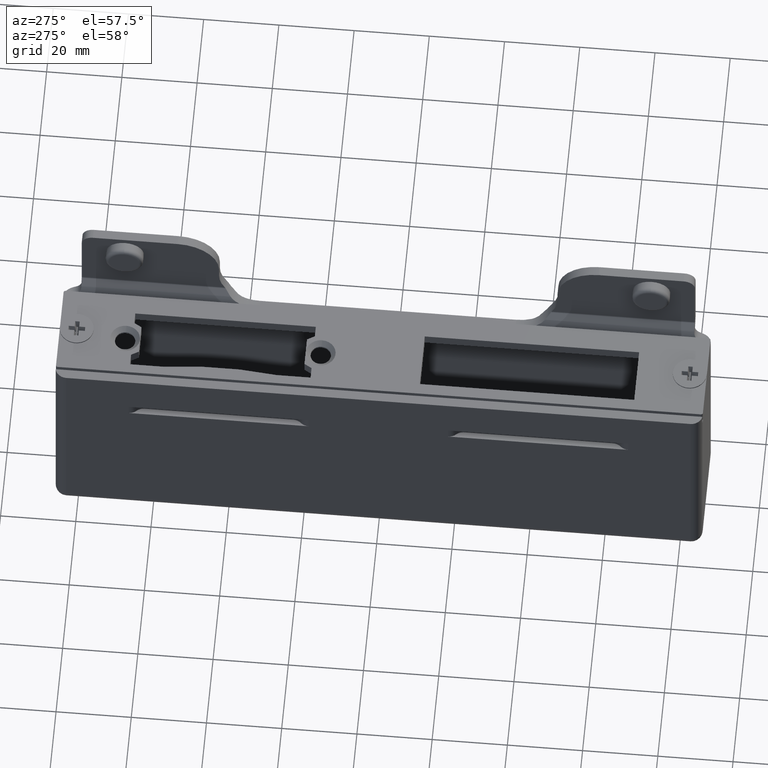
[diagram: clean part render]
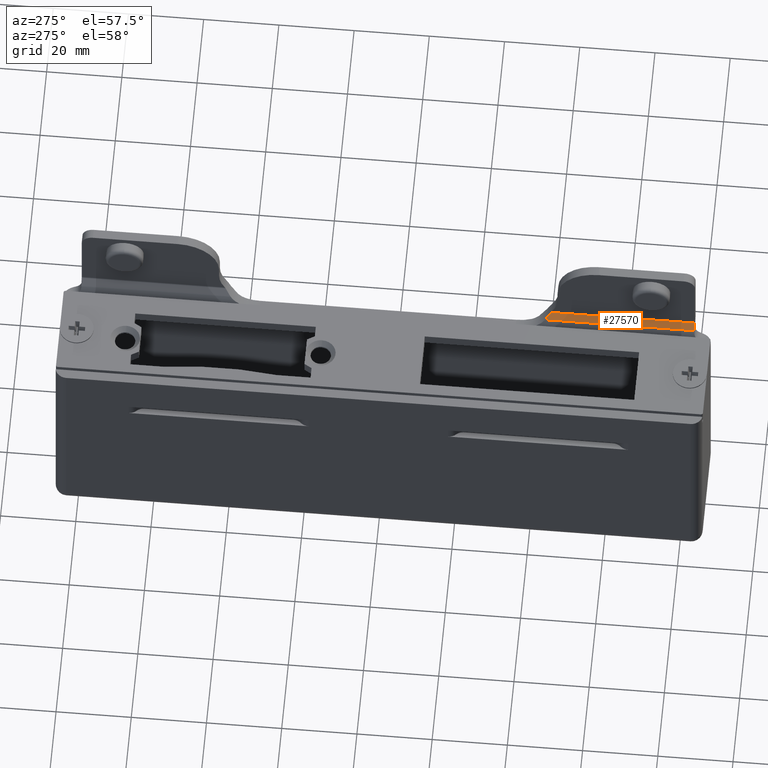
[diagram: same view with one face highlighted and labeled with its STEP entity id]
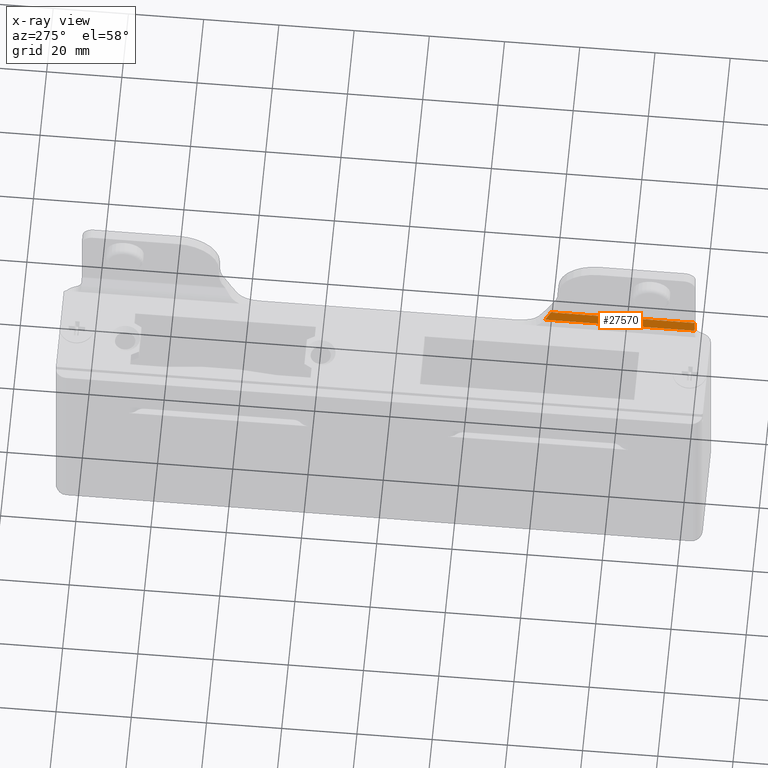
[diagram: x-ray of the same camera — body ghosted, the highlighted face saturated]
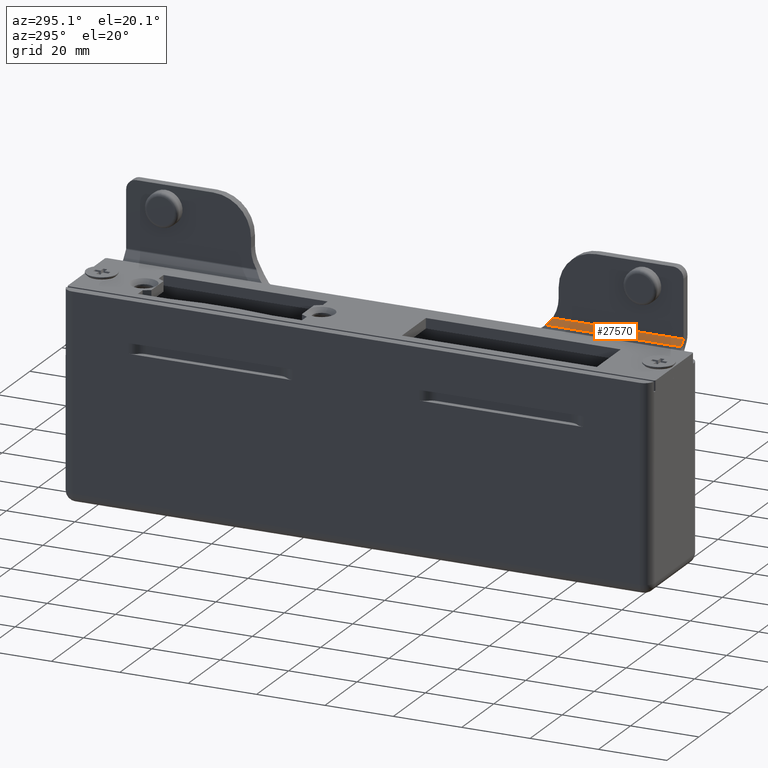
[diagram: same view with one face highlighted and labeled with its STEP entity id]
A machine part, auxiliary view. The second image highlights one B-rep face of the part: STEP entity #27570.
The next image is the same camera in x-ray: the body ghosted, the highlighted face saturated — about 0% of this face is hidden behind the body in this view.
A second angle (auxiliary view) of the same face is appended — the face is thin or edge-on in the first view.
In plain terms, the highlighted planar face has unit normal (0.8, 0, -0.6).
Its self-contained STEP definition (entity closure, byte-faithful):
#282 = ORIENTED_EDGE ( 'NONE', *, *, #19797, .T. ) ;
#474 = DIRECTION ( 'NONE',  ( -0.000000000000000000, -1.000000000000000000, -0.000000000000000000 ) ) ;
#659 = LINE ( 'NONE', #1253, #22665 ) ;
#1253 = CARTESIAN_POINT ( 'NONE',  ( -6.400039658379950147, -81.50000000000000000, 4.800047608089849760 ) ) ;
#1813 = CARTESIAN_POINT ( 'NONE',  ( 13.85000589518320346, -81.50000000000000000, 31.80000786022966253 ) ) ;
#1931 = CARTESIAN_POINT ( 'NONE',  ( 13.85000589518320346, -41.85557897595557364, 31.80000786022966253 ) ) ;
#2047 = CARTESIAN_POINT ( 'NONE',  ( 14.24753939885952825, -42.37512370051392452, 32.33005055913442760 ) ) ;
#2282 = CARTESIAN_POINT ( 'NONE',  ( 15.14999946407423437, -43.24114729785820543, 33.53332616784794595 ) ) ;
#4923 = CARTESIAN_POINT ( 'NONE',  ( 15.14999946407423437, 81.50000000000000000, 33.53332616784794595 ) ) ;
#5026 = CARTESIAN_POINT ( 'NONE',  ( 14.68234893512518191, -42.83855546966091055, 32.90979444985165259 ) ) ;
#8695 = EDGE_CURVE ( 'NONE', #28759, #13303, #24182, .T. ) ;
#11866 =( BOUNDED_CURVE ( )  B_SPLINE_CURVE ( 3, ( #2282, #5026, #2047, #1931 ),
 .UNSPECIFIED., .F., .F. ) 
 B_SPLINE_CURVE_WITH_KNOTS ( ( 4, 4 ),
 ( 5.285709829103734769, 5.487785476402927465 ),
 .UNSPECIFIED. ) 
 CURVE ( )  GEOMETRIC_REPRESENTATION_ITEM ( )  RATIONAL_B_SPLINE_CURVE ( ( 1.000000000000000000, 0.9966000133115633375, 0.9966000133115633375, 1.000000000000000000 ) ) 
 REPRESENTATION_ITEM ( '' )  );
#12349 = CARTESIAN_POINT ( 'NONE',  ( 15.14999946407423437, -43.24114729785820543, 33.53332616784794595 ) ) ;
#12570 = PLANE ( 'NONE',  #27101 ) ;
#13303 = VERTEX_POINT ( 'NONE', #1813 ) ;
#15346 = CARTESIAN_POINT ( 'NONE',  ( -6.400039658379950147, 81.50000000000000000, 4.800047608089849760 ) ) ;
#16340 = VERTEX_POINT ( 'NONE', #30990 ) ;
#16792 = ORIENTED_EDGE ( 'NONE', *, *, #27852, .T. ) ;
#17286 = EDGE_LOOP ( 'NONE', ( #22994, #16792, #28504, #282 ) ) ;
#18115 = EDGE_CURVE ( 'NONE', #33203, #16340, #33469, .T. ) ;
#18247 = DIRECTION ( 'NONE',  ( 0.7999989281485082593, 0.000000000000000000, -0.6000014291326630778 ) ) ;
#18363 = DIRECTION ( 'NONE',  ( -0.6000014291326629667, 0.000000000000000000, -0.7999989281485081483 ) ) ;
#19797 = EDGE_CURVE ( 'NONE', #13303, #16340, #659, .T. ) ;
#20647 = DIRECTION ( 'NONE',  ( 0.6000014291326630778, 0.000000000000000000, 0.7999989281485081483 ) ) ;
#21576 = DIRECTION ( 'NONE',  ( -0.000000000000000000, -1.000000000000000000, -0.000000000000000000 ) ) ;
#22665 = VECTOR ( 'NONE', #20647, 1000.000000000000114 ) ;
#22994 = ORIENTED_EDGE ( 'NONE', *, *, #18115, .F. ) ;
#24182 = LINE ( 'NONE', #24577, #29765 ) ;
#24577 = CARTESIAN_POINT ( 'NONE',  ( 13.85000589518320346, 81.50000000000000000, 31.80000786022966253 ) ) ;
#26168 = VECTOR ( 'NONE', #474, 1000.000000000000000 ) ;
#27101 = AXIS2_PLACEMENT_3D ( 'NONE', #15346, #18247, #18363 ) ;
#27570 = ADVANCED_FACE ( 'NONE', ( #30064 ), #12570, .F. ) ;
#27852 = EDGE_CURVE ( 'NONE', #33203, #28759, #11866, .T. ) ;
#28504 = ORIENTED_EDGE ( 'NONE', *, *, #8695, .T. ) ;
#28759 = VERTEX_POINT ( 'NONE', #32982 ) ;
#29765 = VECTOR ( 'NONE', #21576, 1000.000000000000000 ) ;
#30064 = FACE_OUTER_BOUND ( 'NONE', #17286, .T. ) ;
#30990 = CARTESIAN_POINT ( 'NONE',  ( 15.14999946407423437, -81.50000000000000000, 33.53332616784794595 ) ) ;
#32982 = CARTESIAN_POINT ( 'NONE',  ( 13.85000589518320346, -41.85557897595557364, 31.80000786022966253 ) ) ;
#33203 = VERTEX_POINT ( 'NONE', #12349 ) ;
#33469 = LINE ( 'NONE', #4923, #26168 ) ;